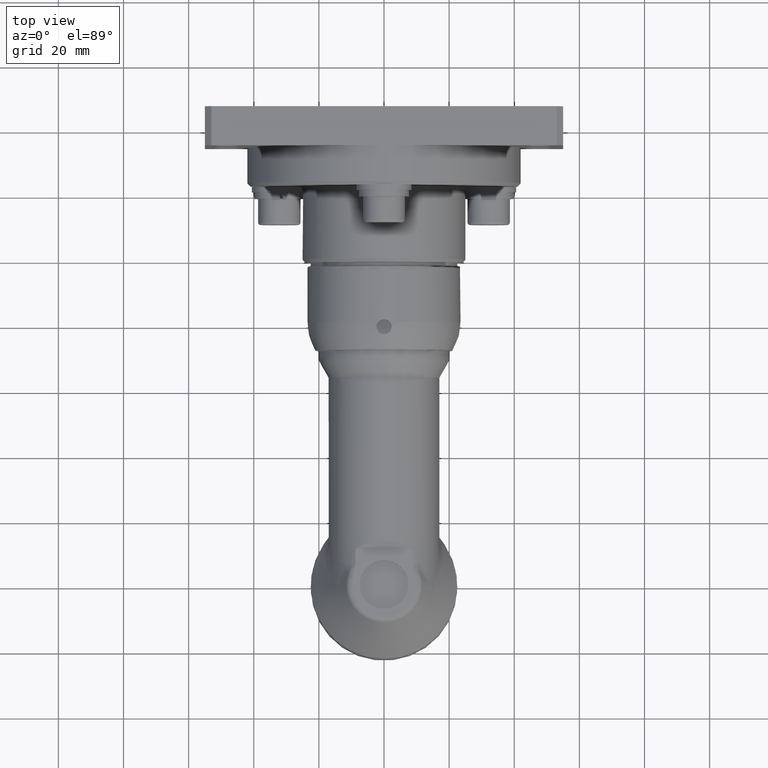
[diagram: clean part render]
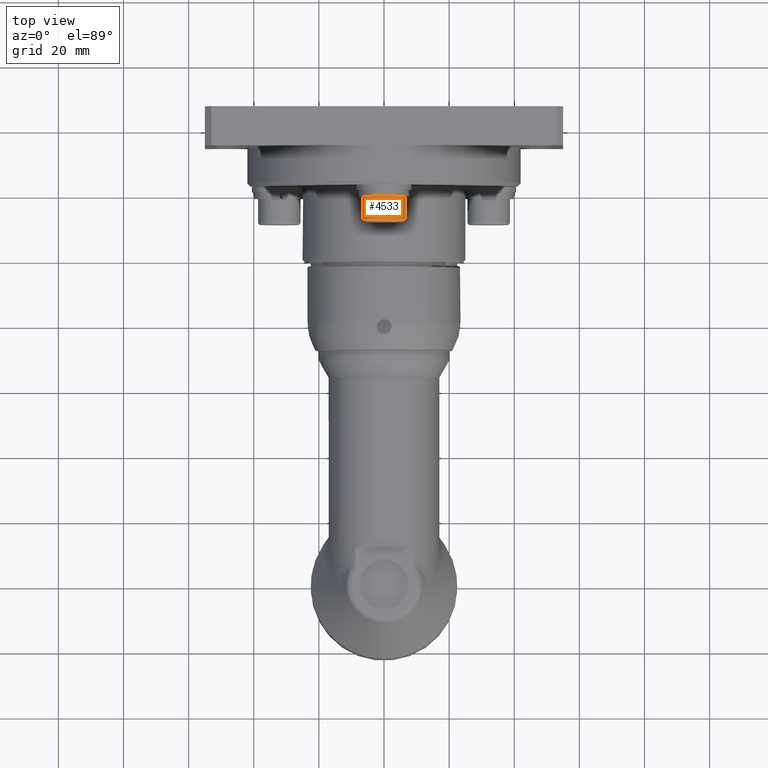
[diagram: same view with one face highlighted and labeled with its STEP entity id]
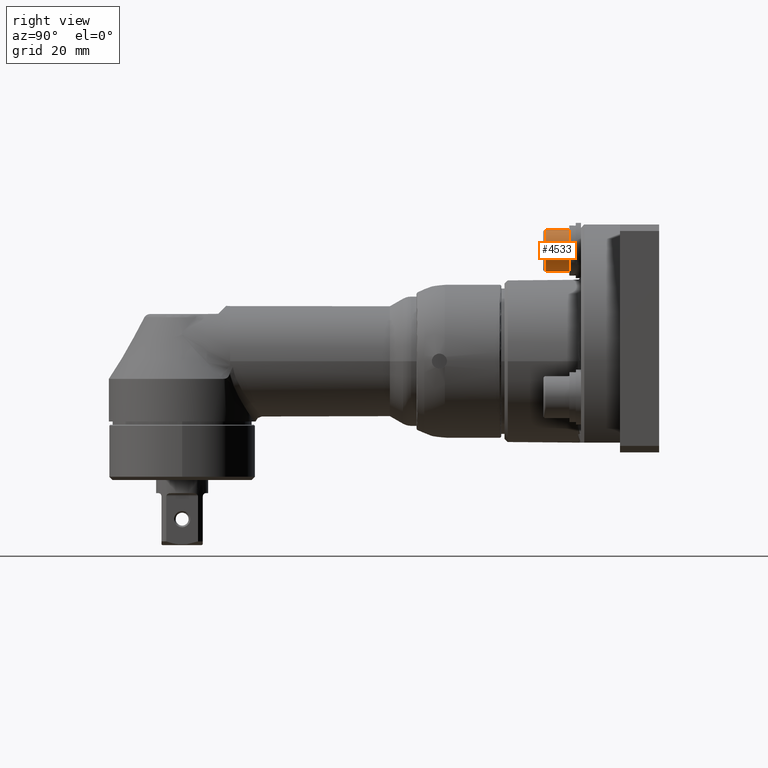
[diagram: same view with one face highlighted and labeled with its STEP entity id]
A machine part, top view. The second image highlights one B-rep face of the part: STEP entity #4533.
A second angle (right view) of the same face is appended — the face is thin or edge-on in the first view.
In plain terms, the highlighted cylindrical surface (bore or boss wall) has radius 6.5 mm, axis along (0, 1, -0).
Its self-contained STEP definition (entity closure, byte-faithful):
#326=LINE('',#8844,#539);
#539=VECTOR('',#6314,6.5);
#667=CYLINDRICAL_SURFACE('',#5079,6.5);
#917=FACE_OUTER_BOUND('',#1218,.T.);
#1218=EDGE_LOOP('',(#3821,#3822,#3823,#3824,#3825,#3826,#3827,#3828));
#1582=CIRCLE('',#5080,6.5);
#1583=CIRCLE('',#5081,6.5);
#1584=CIRCLE('',#5082,6.5);
#1585=CIRCLE('',#5083,6.5);
#1586=CIRCLE('',#5084,6.5);
#1587=CIRCLE('',#5085,6.5);
#2033=VERTEX_POINT('',#8837);
#2034=VERTEX_POINT('',#8838);
#2035=VERTEX_POINT('',#8840);
#2036=VERTEX_POINT('',#8843);
#2037=VERTEX_POINT('',#8845);
#2038=VERTEX_POINT('',#8847);
#2658=EDGE_CURVE('',#2033,#2034,#1582,.T.);
#2659=EDGE_CURVE('',#2035,#2033,#1583,.T.);
#2660=EDGE_CURVE('',#2034,#2035,#1584,.T.);
#2661=EDGE_CURVE('',#2034,#2036,#326,.T.);
#2662=EDGE_CURVE('',#2037,#2036,#1585,.T.);
#2663=EDGE_CURVE('',#2038,#2037,#1586,.T.);
#2664=EDGE_CURVE('',#2036,#2038,#1587,.T.);
#3821=ORIENTED_EDGE('',*,*,#2658,.F.);
#3822=ORIENTED_EDGE('',*,*,#2659,.F.);
#3823=ORIENTED_EDGE('',*,*,#2660,.F.);
#3824=ORIENTED_EDGE('',*,*,#2661,.T.);
#3825=ORIENTED_EDGE('',*,*,#2662,.F.);
#3826=ORIENTED_EDGE('',*,*,#2663,.F.);
#3827=ORIENTED_EDGE('',*,*,#2664,.F.);
#3828=ORIENTED_EDGE('',*,*,#2661,.F.);
#4533=ADVANCED_FACE('',(#917),#667,.T.);
#5079=AXIS2_PLACEMENT_3D('',#8836,#6306,#6307);
#5080=AXIS2_PLACEMENT_3D('',#8839,#6308,#6309);
#5081=AXIS2_PLACEMENT_3D('',#8841,#6310,#6311);
#5082=AXIS2_PLACEMENT_3D('',#8842,#6312,#6313);
#5083=AXIS2_PLACEMENT_3D('',#8846,#6315,#6316);
#5084=AXIS2_PLACEMENT_3D('',#8848,#6317,#6318);
#5085=AXIS2_PLACEMENT_3D('',#8849,#6319,#6320);
#6306=DIRECTION('center_axis',(2.21929747786554E-14,1.,-1.06971554646462E-15));
#6307=DIRECTION('ref_axis',(1.,-1.08599117800846E-14,-1.76491446194807E-15));
#6308=DIRECTION('center_axis',(2.21929747786554E-14,1.,-1.06971554646462E-15));
#6309=DIRECTION('ref_axis',(1.,-1.08599117800846E-14,-1.76491446194807E-15));
#6310=DIRECTION('center_axis',(2.21929747786554E-14,1.,-1.06971554646462E-15));
#6311=DIRECTION('ref_axis',(1.,-1.08599117800846E-14,-1.76491446194807E-15));
#6312=DIRECTION('center_axis',(2.21929747786554E-14,1.,-1.06971554646462E-15));
#6313=DIRECTION('ref_axis',(1.,-1.08599117800846E-14,-1.76491446194807E-15));
#6314=DIRECTION('',(-2.21929747786554E-14,-1.,1.06971554646462E-15));
#6315=DIRECTION('center_axis',(-2.21929747786554E-14,-1.,1.06971554646462E-15));
#6316=DIRECTION('ref_axis',(-1.,2.21938068413892E-14,1.64244978203332E-15));
#6317=DIRECTION('center_axis',(-2.21929747786554E-14,-1.,1.06971554646462E-15));
#6318=DIRECTION('ref_axis',(-1.,2.21938068413892E-14,1.64244978203332E-15));
#6319=DIRECTION('center_axis',(-2.21929747786554E-14,-1.,1.06971554646462E-15));
#6320=DIRECTION('ref_axis',(-1.,2.21938068413892E-14,1.64244978203332E-15));
#8836=CARTESIAN_POINT('Origin',(-9.04823796004499E-14,114.9,33.9999999999998));
#8837=CARTESIAN_POINT('',(-1.12794046853242,118.9,27.5986134080615));
#8838=CARTESIAN_POINT('',(-6.5,118.9,33.9999999999998));
#8839=CARTESIAN_POINT('Origin',(-1.71048048582814E-15,118.9,33.9999999999998));
#8840=CARTESIAN_POINT('',(-0.327940468532418,118.9,27.5082779596549));
#8841=CARTESIAN_POINT('Origin',(-1.71048048582814E-15,118.9,33.9999999999998));
#8842=CARTESIAN_POINT('Origin',(-1.71048048582814E-15,118.9,33.9999999999998));
#8843=CARTESIAN_POINT('',(-6.49999999999997,111.7,33.9999999999998));
#8844=CARTESIAN_POINT('',(-6.50000000000009,114.9,33.9999999999998));
#8845=CARTESIAN_POINT('',(6.49999999999984,111.699999999999,33.9999999999998));
#8846=CARTESIAN_POINT('Origin',(-1.61499898892147E-13,111.7,33.9999999999998));
#8847=CARTESIAN_POINT('',(-1.73767863314255E-13,111.7,27.4999999999998));
#8848=CARTESIAN_POINT('Origin',(-1.61499898892147E-13,111.7,33.9999999999998));
#8849=CARTESIAN_POINT('Origin',(-1.61499898892147E-13,111.7,33.9999999999998));